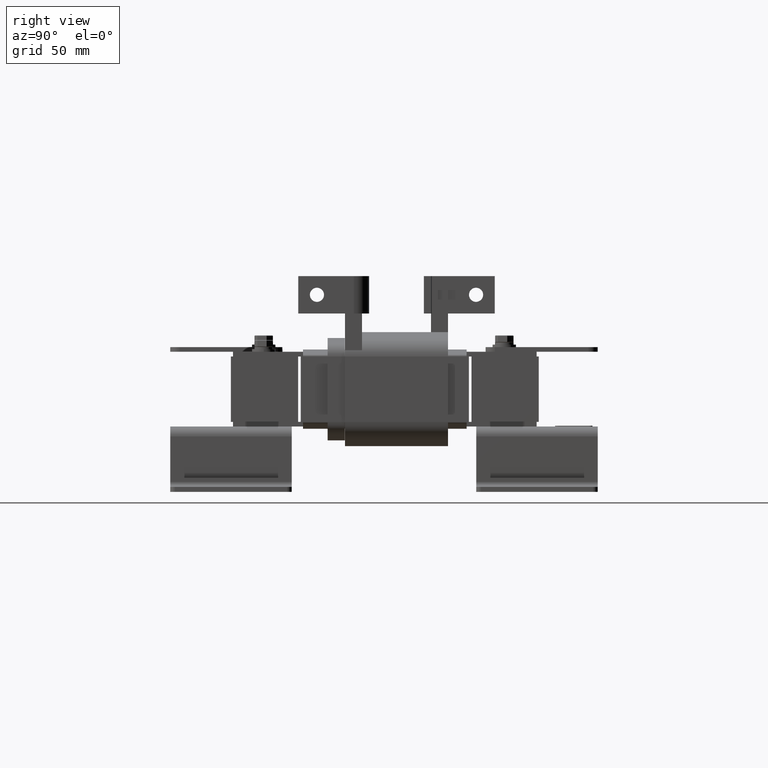
[diagram: clean part render]
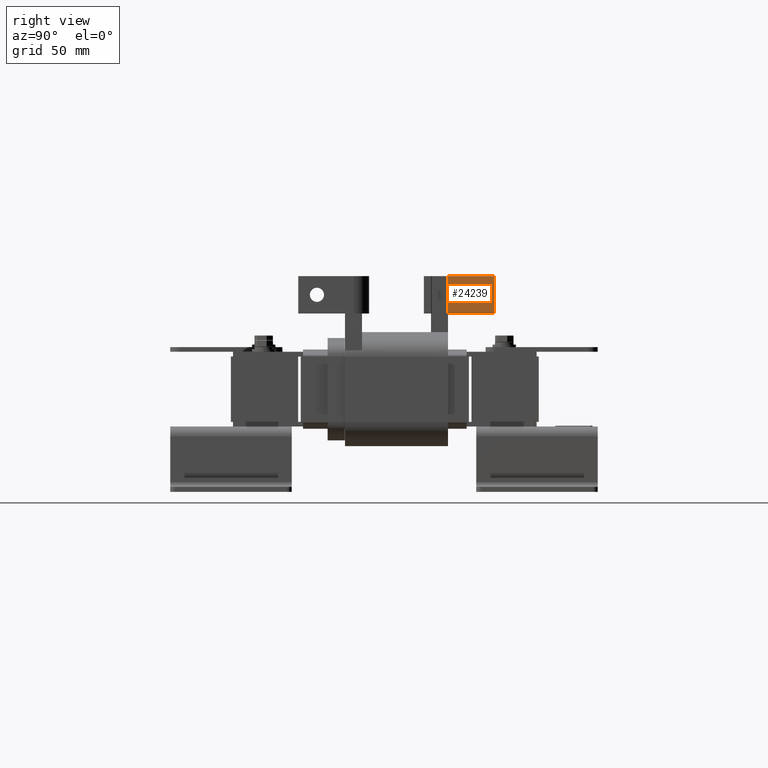
[diagram: same view with one face highlighted and labeled with its STEP entity id]
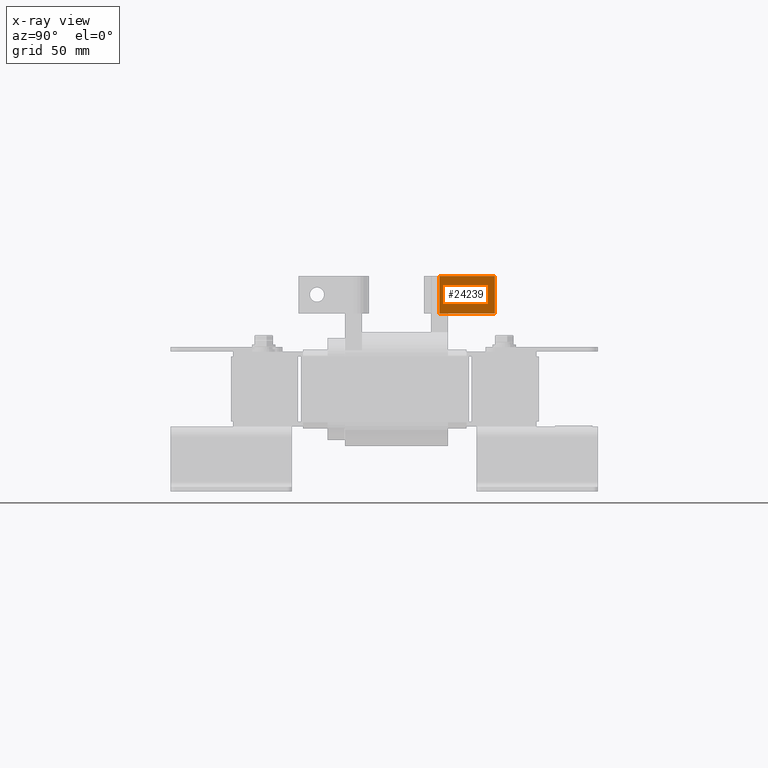
[diagram: x-ray of the same camera — body ghosted, the highlighted face saturated]
A machine part, right view. The second image highlights one B-rep face of the part: STEP entity #24239.
The next image is the same camera in x-ray: the body ghosted, the highlighted face saturated — about 0% of this face is hidden behind the body in this view.
In plain terms, the highlighted planar face has unit normal (1, 0, 0).
Its self-contained STEP definition (entity closure, byte-faithful):
#919=FACE_BOUND('',#4320,.T.);
#1643=PLANE('',#26591);
#2923=FACE_OUTER_BOUND('',#4319,.T.);
#4319=EDGE_LOOP('',(#22550,#22551,#22552,#22553));
#4320=EDGE_LOOP('',(#22554));
#6682=LINE('',#42472,#9061);
#6688=LINE('',#42489,#9067);
#6699=LINE('',#42513,#9078);
#6700=LINE('',#42515,#9079);
#9061=VECTOR('',#32846,0.393700787401575);
#9067=VECTOR('',#32860,0.393700787401575);
#9078=VECTOR('',#32885,0.393700787401575);
#9079=VECTOR('',#32888,0.393700787401575);
#9841=CIRCLE('',#26578,0.19);
#12127=VERTEX_POINT('',#42464);
#12128=VERTEX_POINT('',#42468);
#12130=VERTEX_POINT('',#42471);
#12136=VERTEX_POINT('',#42485);
#12143=VERTEX_POINT('',#42511);
#15592=EDGE_CURVE('',#12127,#12127,#9841,.T.);
#15594=EDGE_CURVE('',#12130,#12128,#6682,.T.);
#15603=EDGE_CURVE('',#12136,#12130,#6688,.T.);
#15615=EDGE_CURVE('',#12128,#12143,#6699,.T.);
#15616=EDGE_CURVE('',#12143,#12136,#6700,.T.);
#22550=ORIENTED_EDGE('',*,*,#15616,.T.);
#22551=ORIENTED_EDGE('',*,*,#15603,.T.);
#22552=ORIENTED_EDGE('',*,*,#15594,.T.);
#22553=ORIENTED_EDGE('',*,*,#15615,.T.);
#22554=ORIENTED_EDGE('',*,*,#15592,.T.);
#24239=ADVANCED_FACE('',(#2923,#919),#1643,.T.);
#26578=AXIS2_PLACEMENT_3D('',#42466,#32841,#32842);
#26591=AXIS2_PLACEMENT_3D('',#42514,#32886,#32887);
#32841=DIRECTION('center_axis',(0.,1.,0.));
#32842=DIRECTION('ref_axis',(-1.,0.,0.));
#32846=DIRECTION('',(1.,0.,0.));
#32860=DIRECTION('',(0.,0.,-1.));
#32885=DIRECTION('',(0.,0.,1.));
#32886=DIRECTION('center_axis',(0.,-1.,0.));
#32887=DIRECTION('ref_axis',(0.,0.,-1.));
#32888=DIRECTION('',(-1.,0.,0.));
#42464=CARTESIAN_POINT('',(1.56000256672044,-0.0835631168447882,-2.32682891837997E-17));
#42466=CARTESIAN_POINT('Origin',(1.37000256672044,-0.0835631168447882,0.));
#42468=CARTESIAN_POINT('',(1.87000256672044,-0.0835631168447882,-0.5));
#42471=CARTESIAN_POINT('',(0.383699444015629,-0.0835631168447882,-0.5));
#42472=CARTESIAN_POINT('',(1.87000256672044,-0.0835631168447882,-0.5));
#42485=CARTESIAN_POINT('',(0.383699444015629,-0.0835631168447882,0.5));
#42489=CARTESIAN_POINT('',(0.383699444015629,-0.0835631168447882,0.));
#42511=CARTESIAN_POINT('',(1.87000256672044,-0.0835631168447882,0.5));
#42513=CARTESIAN_POINT('',(1.87000256672044,-0.0835631168447882,0.));
#42514=CARTESIAN_POINT('Origin',(1.87000256672044,-0.0835631168447882,0.));
#42515=CARTESIAN_POINT('',(1.87000256672044,-0.0835631168447882,0.5));